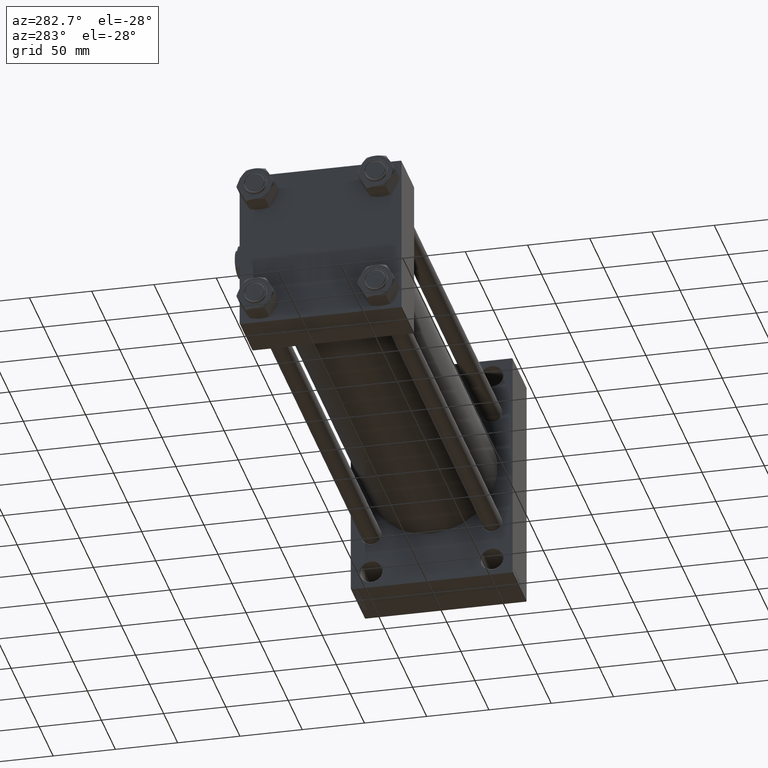
[diagram: clean part render]
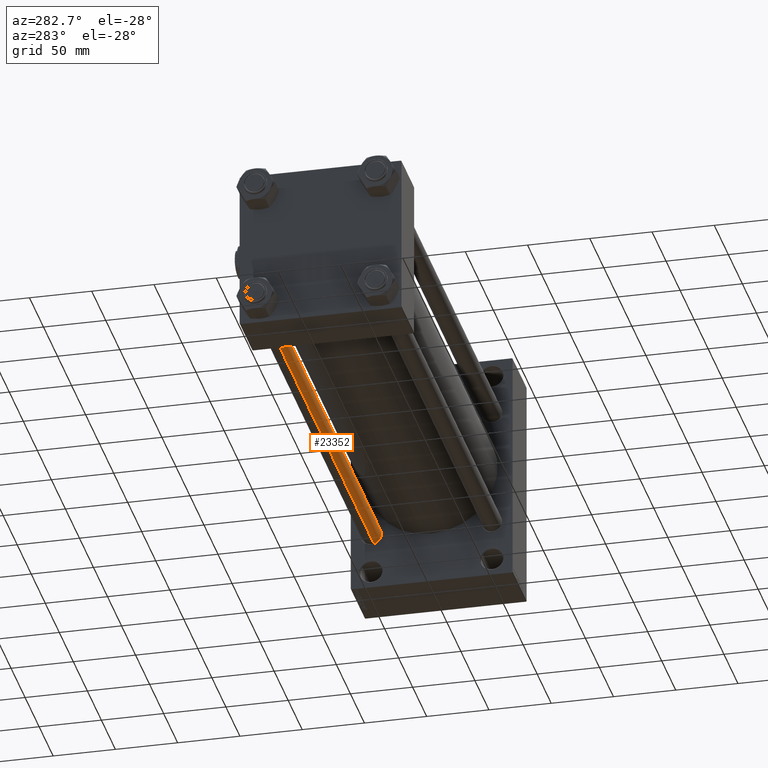
[diagram: same view with one face highlighted and labeled with its STEP entity id]
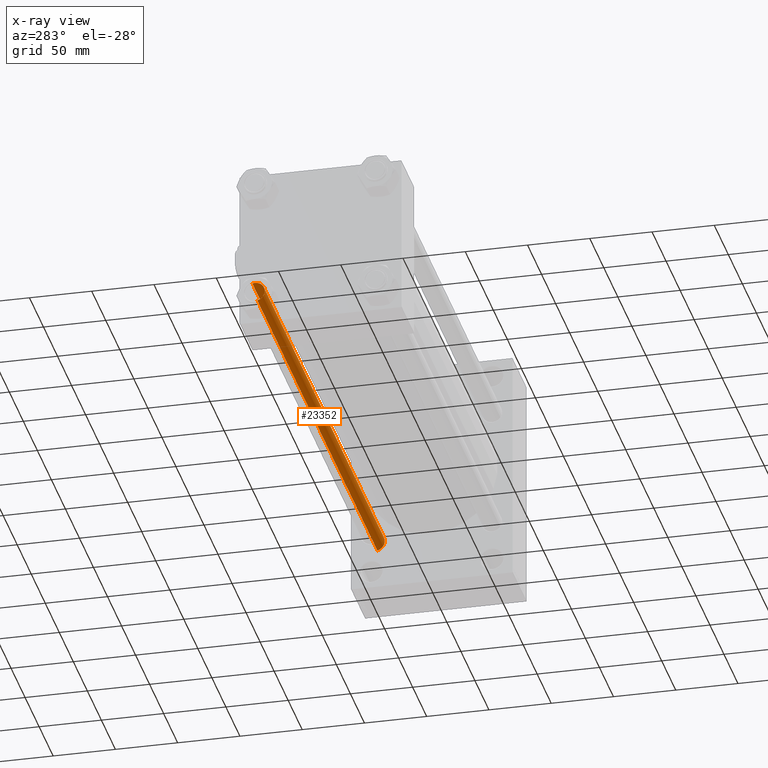
[diagram: x-ray of the same camera — body ghosted, the highlighted face saturated]
A machine part, auxiliary view. The second image highlights one B-rep face of the part: STEP entity #23352.
The next image is the same camera in x-ray: the body ghosted, the highlighted face saturated — about 0% of this face is hidden behind the body in this view.
In plain terms, the highlighted cylindrical surface (edge-blend (fillet) strip) has radius 8 mm, axis along (1, -0, 0).
Its self-contained STEP definition (entity closure, byte-faithful):
#237 = CARTESIAN_POINT ( 'NONE',  ( -8.000000000000000000, 0.000000000000000000, 0.4999999999998894218 ) ) ;
#1256 = DIRECTION ( 'NONE',  ( -0.000000000000000000, -0.000000000000000000, 1.000000000000000000 ) ) ;
#2380 = CYLINDRICAL_SURFACE ( 'NONE', #28103, 8.000000000000000000 ) ;
#4198 = CIRCLE ( 'NONE', #17092, 8.000000000000000000 ) ;
#6856 = EDGE_CURVE ( 'NONE', #32215, #48770, #16118, .T. ) ;
#7650 = ORIENTED_EDGE ( 'NONE', *, *, #38958, .T. ) ;
#8118 = ORIENTED_EDGE ( 'NONE', *, *, #49758, .T. ) ;
#9285 = DIRECTION ( 'NONE',  ( 1.000000000000000000, 0.000000000000000000, 0.000000000000000000 ) ) ;
#12937 = CARTESIAN_POINT ( 'NONE',  ( 8.000000000000000000, 9.797174393178825657E-16, 0.4999999999998894218 ) ) ;
#13556 = CIRCLE ( 'NONE', #24855, 8.000000000000000000 ) ;
#16118 = LINE ( 'NONE', #46743, #16343 ) ;
#16343 = VECTOR ( 'NONE', #23969, 1000.000000000000000 ) ;
#17092 = AXIS2_PLACEMENT_3D ( 'NONE', #47270, #1256, #9285 ) ;
#17151 = DIRECTION ( 'NONE',  ( 0.000000000000000000, 0.000000000000000000, -1.000000000000000000 ) ) ;
#19326 = VECTOR ( 'NONE', #31257, 1000.000000000000000 ) ;
#23352 = ADVANCED_FACE ( 'NONE', ( #49157 ), #2380, .T. ) ;
#23969 = DIRECTION ( 'NONE',  ( -0.000000000000000000, -0.000000000000000000, -1.000000000000000000 ) ) ;
#24482 = ORIENTED_EDGE ( 'NONE', *, *, #40433, .T. ) ;
#24855 = AXIS2_PLACEMENT_3D ( 'NONE', #25238, #17151, #48769 ) ;
#25238 = CARTESIAN_POINT ( 'NONE',  ( 0.000000000000000000, 0.000000000000000000, 428.5000000000000000 ) ) ;
#25623 = CARTESIAN_POINT ( 'NONE',  ( 0.000000000000000000, 0.000000000000000000, 429.0000000000000000 ) ) ;
#28103 = AXIS2_PLACEMENT_3D ( 'NONE', #25623, #41072, #45367 ) ;
#31257 = DIRECTION ( 'NONE',  ( -0.000000000000000000, -0.000000000000000000, -1.000000000000000000 ) ) ;
#32215 = VERTEX_POINT ( 'NONE', #49566 ) ;
#34591 = VERTEX_POINT ( 'NONE', #237 ) ;
#35053 = CARTESIAN_POINT ( 'NONE',  ( -8.000000000000000000, 0.000000000000000000, 429.0000000000000000 ) ) ;
#35803 = LINE ( 'NONE', #35053, #19326 ) ;
#38447 = VERTEX_POINT ( 'NONE', #42304 ) ;
#38958 = EDGE_CURVE ( 'NONE', #32215, #38447, #13556, .T. ) ;
#40433 = EDGE_CURVE ( 'NONE', #38447, #34591, #35803, .T. ) ;
#41058 = ORIENTED_EDGE ( 'NONE', *, *, #6856, .F. ) ;
#41072 = DIRECTION ( 'NONE',  ( -0.000000000000000000, -0.000000000000000000, -1.000000000000000000 ) ) ;
#41659 = EDGE_LOOP ( 'NONE', ( #41058, #7650, #24482, #8118 ) ) ;
#42304 = CARTESIAN_POINT ( 'NONE',  ( -8.000000000000000000, 0.000000000000000000, 428.5000000000000000 ) ) ;
#45367 = DIRECTION ( 'NONE',  ( -1.000000000000000000, 0.000000000000000000, 0.000000000000000000 ) ) ;
#46743 = CARTESIAN_POINT ( 'NONE',  ( 8.000000000000000000, 9.797174393178825657E-16, 429.0000000000000000 ) ) ;
#47270 = CARTESIAN_POINT ( 'NONE',  ( 0.000000000000000000, 0.000000000000000000, 0.4999999999998894218 ) ) ;
#48769 = DIRECTION ( 'NONE',  ( 1.000000000000000000, 0.000000000000000000, 0.000000000000000000 ) ) ;
#48770 = VERTEX_POINT ( 'NONE', #12937 ) ;
#49157 = FACE_OUTER_BOUND ( 'NONE', #41659, .T. ) ;
#49566 = CARTESIAN_POINT ( 'NONE',  ( 8.000000000000000000, 9.797174393178825657E-16, 428.5000000000000000 ) ) ;
#49758 = EDGE_CURVE ( 'NONE', #34591, #48770, #4198, .T. ) ;